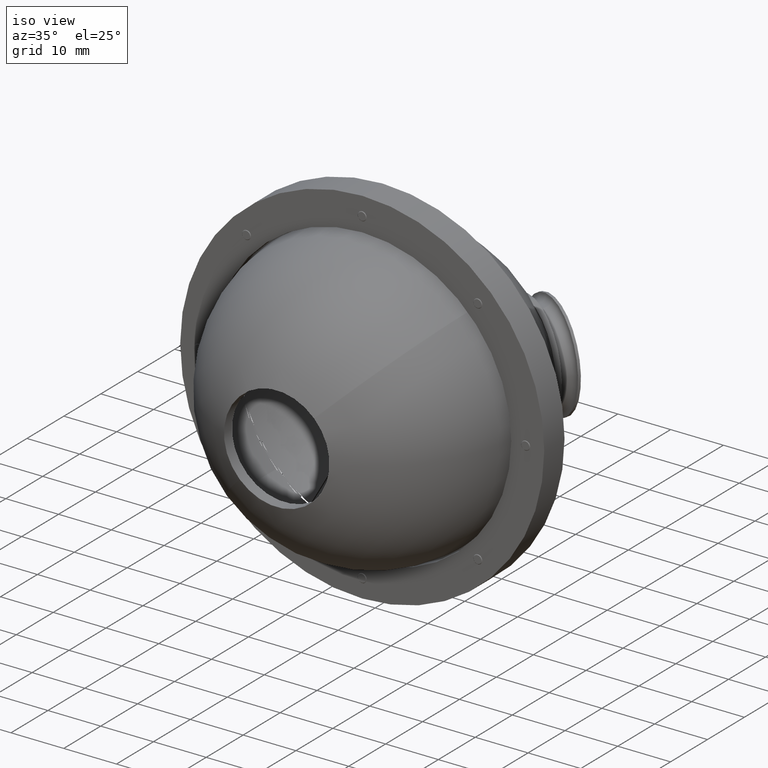
[diagram: clean part render]
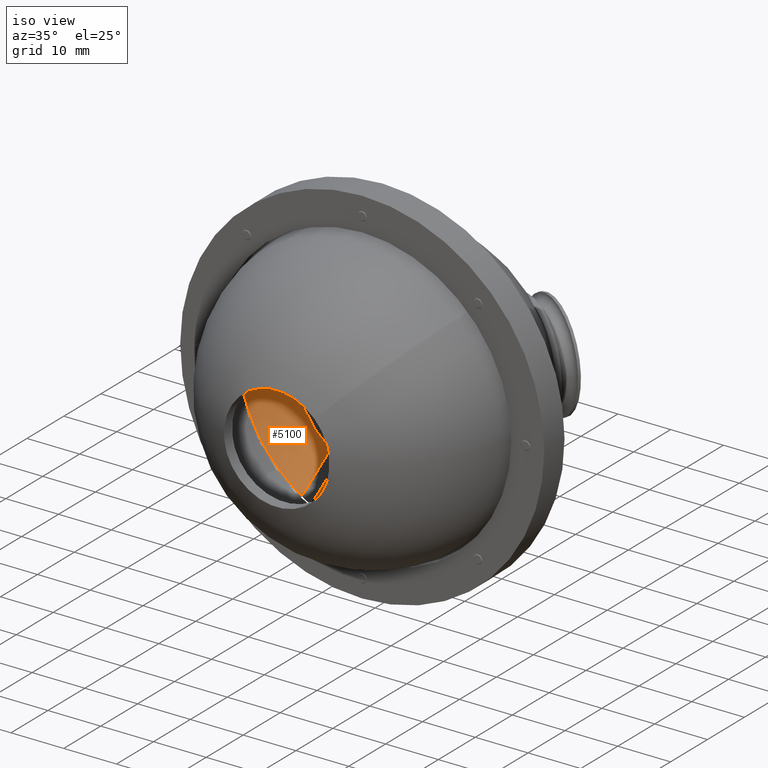
[diagram: same view with one face highlighted and labeled with its STEP entity id]
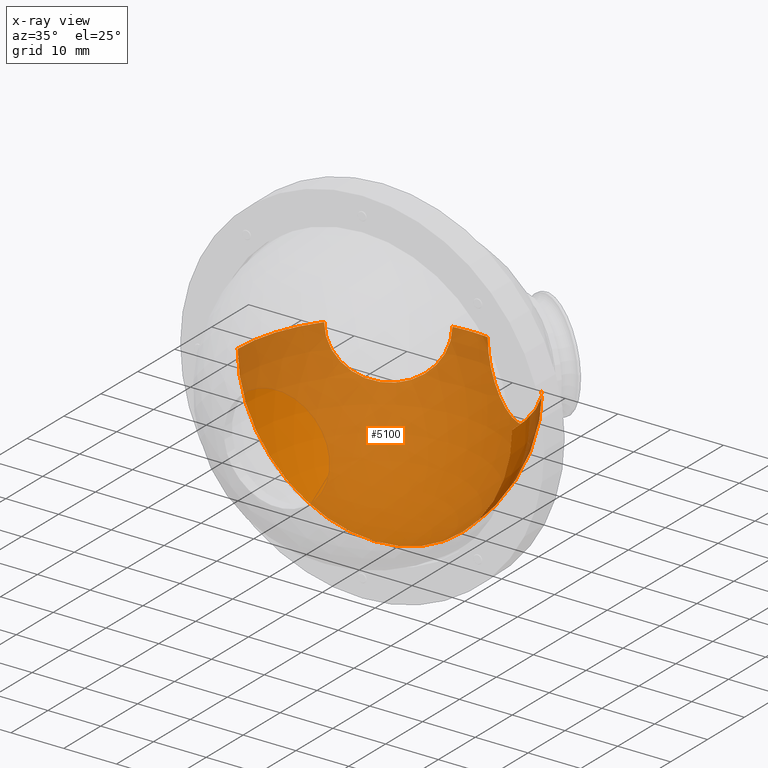
[diagram: x-ray of the same camera — body ghosted, the highlighted face saturated]
A machine part, iso view. The second image highlights one B-rep face of the part: STEP entity #5100.
The next image is the same camera in x-ray: the body ghosted, the highlighted face saturated — about 85% of this face is hidden behind the body in this view.
In plain terms, the highlighted spherical surface has radius 26 mm.
Its self-contained STEP definition (entity closure, byte-faithful):
#52 = AXIS2_PLACEMENT_3D ( 'NONE', #7533, #6990, #7609 ) ;
#267 = DIRECTION ( 'NONE',  ( 0.000000000000000000, 0.000000000000000000, 1.000000000000000000 ) ) ;
#323 = EDGE_CURVE ( 'NONE', #1775, #6188, #1527, .T. ) ;
#390 = CIRCLE ( 'NONE', #5661, 26.00000000000000711 ) ;
#514 = DIRECTION ( 'NONE',  ( 0.000000000000000000, 0.000000000000000000, -1.000000000000000000 ) ) ;
#580 = AXIS2_PLACEMENT_3D ( 'NONE', #5095, #2021, #3327 ) ;
#583 = VERTEX_POINT ( 'NONE', #4400 ) ;
#617 = CIRCLE ( 'NONE', #5889, 10.00000000000000000 ) ;
#618 = CARTESIAN_POINT ( 'NONE',  ( 8.484018949608307381, -17.91086588718419748, 0.000000000000000000 ) ) ;
#689 = DIRECTION ( 'NONE',  ( 0.8660254037844401509, -0.4999999999999974465, 0.000000000000000000 ) ) ;
#872 = CARTESIAN_POINT ( 'NONE',  ( 8.484018949608307381, -17.91086588718419748, 0.000000000000000000 ) ) ;
#1014 = CIRCLE ( 'NONE', #6395, 26.00000000000000355 ) ;
#1054 = AXIS2_PLACEMENT_3D ( 'NONE', #872, #267, #4472 ) ;
#1078 = DIRECTION ( 'NONE',  ( -0.000000000000000000, -1.000000000000000000, -0.000000000000000000 ) ) ;
#1221 = CIRCLE ( 'NONE', #2216, 26.00000000000000355 ) ;
#1222 = CARTESIAN_POINT ( 'NONE',  ( 20.48401894960824521, 2.873743803642359040, 0.000000000000000000 ) ) ;
#1275 = EDGE_CURVE ( 'NONE', #583, #6194, #1221, .T. ) ;
#1493 = CIRCLE ( 'NONE', #4554, 10.00000000000001421 ) ;
#1527 = CIRCLE ( 'NONE', #52, 26.00000000000000355 ) ;
#1775 = VERTEX_POINT ( 'NONE', #6759 ) ;
#2021 = DIRECTION ( 'NONE',  ( 1.224646799147353207E-16, -0.000000000000000000, 1.000000000000000000 ) ) ;
#2216 = AXIS2_PLACEMENT_3D ( 'NONE', #3246, #5596, #6674 ) ;
#2578 = DIRECTION ( 'NONE',  ( 0.4999999999999975575, 0.8660254037844402619, 0.000000000000000000 ) ) ;
#2611 = DIRECTION ( 'NONE',  ( 0.8660254037844415942, 0.4999999999999948375, 0.000000000000000000 ) ) ;
#2709 = EDGE_CURVE ( 'NONE', #1775, #5536, #390, .T. ) ;
#2723 = CARTESIAN_POINT ( 'NONE',  ( -17.51598105039169440, -17.91086588718419748, 3.184081677783118585E-15 ) ) ;
#2735 = EDGE_LOOP ( 'NONE', ( #7200, #6487, #6628, #3699, #5202, #5732, #2883 ) ) ;
#2740 = CARTESIAN_POINT ( 'NONE',  ( 5.144272987452839452, 7.873743803642351047, 4.090009202518991351E-16 ) ) ;
#2741 = EDGE_CURVE ( 'NONE', #3841, #6194, #1014, .T. ) ;
#2883 = ORIENTED_EDGE ( 'NONE', *, *, #2909, .T. ) ;
#2909 = EDGE_CURVE ( 'NONE', #583, #6188, #1493, .T. ) ;
#2913 = CARTESIAN_POINT ( 'NONE',  ( 8.484018949608307381, -17.91086588718419748, 0.000000000000000000 ) ) ;
#3246 = CARTESIAN_POINT ( 'NONE',  ( 8.484018949608307381, -17.91086588718419748, 0.000000000000000000 ) ) ;
#3247 = FACE_OUTER_BOUND ( 'NONE', #2735, .T. ) ;
#3327 = DIRECTION ( 'NONE',  ( 1.000000000000000000, 0.000000000000000000, -1.224646799147352961E-16 ) ) ;
#3380 = DIRECTION ( 'NONE',  ( 1.224646799147353207E-16, -0.000000000000000000, 1.000000000000000000 ) ) ;
#3429 = CARTESIAN_POINT ( 'NONE',  ( -12.17623508823598222, -2.126256196357539263, 2.530151397701719276E-15 ) ) ;
#3453 = EDGE_CURVE ( 'NONE', #6873, #5536, #617, .T. ) ;
#3699 = ORIENTED_EDGE ( 'NONE', *, *, #5040, .T. ) ;
#3841 = VERTEX_POINT ( 'NONE', #2723 ) ;
#3876 = CIRCLE ( 'NONE', #580, 26.00000000000000711 ) ;
#3998 = DIRECTION ( 'NONE',  ( 0.4999999999999948375, -0.8660254037844415942, -0.000000000000000000 ) ) ;
#4400 = CARTESIAN_POINT ( 'NONE',  ( 29.14427298745265915, -2.126256196357626749, 0.000000000000000000 ) ) ;
#4472 = DIRECTION ( 'NONE',  ( 1.000000000000000000, 0.000000000000000000, 0.000000000000000000 ) ) ;
#4554 = AXIS2_PLACEMENT_3D ( 'NONE', #1222, #2578, #689 ) ;
#4724 = DIRECTION ( 'NONE',  ( 1.000000000000000000, 0.000000000000000000, -1.224646799147352961E-16 ) ) ;
#5040 = EDGE_CURVE ( 'NONE', #6873, #3841, #3876, .T. ) ;
#5095 = CARTESIAN_POINT ( 'NONE',  ( 8.484018949608307381, -17.91086588718419748, 0.000000000000000000 ) ) ;
#5100 = ADVANCED_FACE ( 'NONE', ( #3247 ), #6134, .F. ) ;
#5202 = ORIENTED_EDGE ( 'NONE', *, *, #2741, .T. ) ;
#5445 = CARTESIAN_POINT ( 'NONE',  ( 11.82376491176382771, 7.873743803642341277, 0.000000000000000000 ) ) ;
#5536 = VERTEX_POINT ( 'NONE', #2740 ) ;
#5596 = DIRECTION ( 'NONE',  ( 0.000000000000000000, 0.000000000000000000, -1.000000000000000000 ) ) ;
#5661 = AXIS2_PLACEMENT_3D ( 'NONE', #2913, #3380, #4724 ) ;
#5732 = ORIENTED_EDGE ( 'NONE', *, *, #1275, .F. ) ;
#5889 = AXIS2_PLACEMENT_3D ( 'NONE', #6940, #3998, #2611 ) ;
#6134 = SPHERICAL_SURFACE ( 'NONE', #1054, 26.00000000000000355 ) ;
#6188 = VERTEX_POINT ( 'NONE', #5445 ) ;
#6194 = VERTEX_POINT ( 'NONE', #6676 ) ;
#6395 = AXIS2_PLACEMENT_3D ( 'NONE', #618, #1078, #514 ) ;
#6487 = ORIENTED_EDGE ( 'NONE', *, *, #2709, .T. ) ;
#6628 = ORIENTED_EDGE ( 'NONE', *, *, #3453, .F. ) ;
#6674 = DIRECTION ( 'NONE',  ( -1.000000000000000000, 0.000000000000000000, 0.000000000000000000 ) ) ;
#6676 = CARTESIAN_POINT ( 'NONE',  ( 34.48401894960831271, -17.91086588718419748, 0.000000000000000000 ) ) ;
#6759 = CARTESIAN_POINT ( 'NONE',  ( 8.484018949608309157, 8.089134112815802524, 0.000000000000000000 ) ) ;
#6873 = VERTEX_POINT ( 'NONE', #3429 ) ;
#6940 = CARTESIAN_POINT ( 'NONE',  ( -3.515981050391570939, 2.873743803642404337, 0.000000000000000000 ) ) ;
#6990 = DIRECTION ( 'NONE',  ( 0.000000000000000000, 0.000000000000000000, -1.000000000000000000 ) ) ;
#7200 = ORIENTED_EDGE ( 'NONE', *, *, #323, .F. ) ;
#7533 = CARTESIAN_POINT ( 'NONE',  ( 8.484018949608307381, -17.91086588718419748, 0.000000000000000000 ) ) ;
#7609 = DIRECTION ( 'NONE',  ( -1.000000000000000000, 0.000000000000000000, 0.000000000000000000 ) ) ;